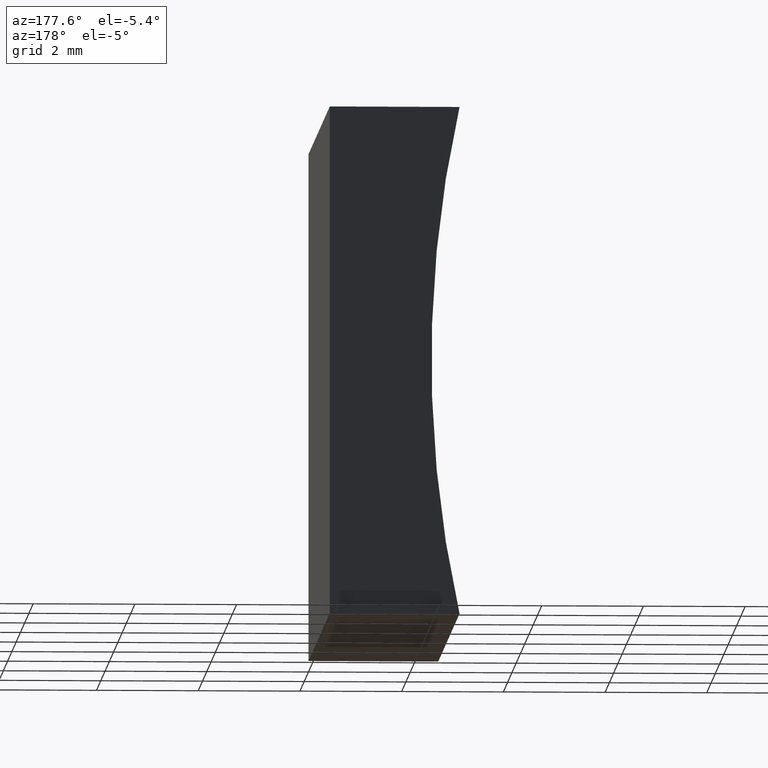
[diagram: clean part render]
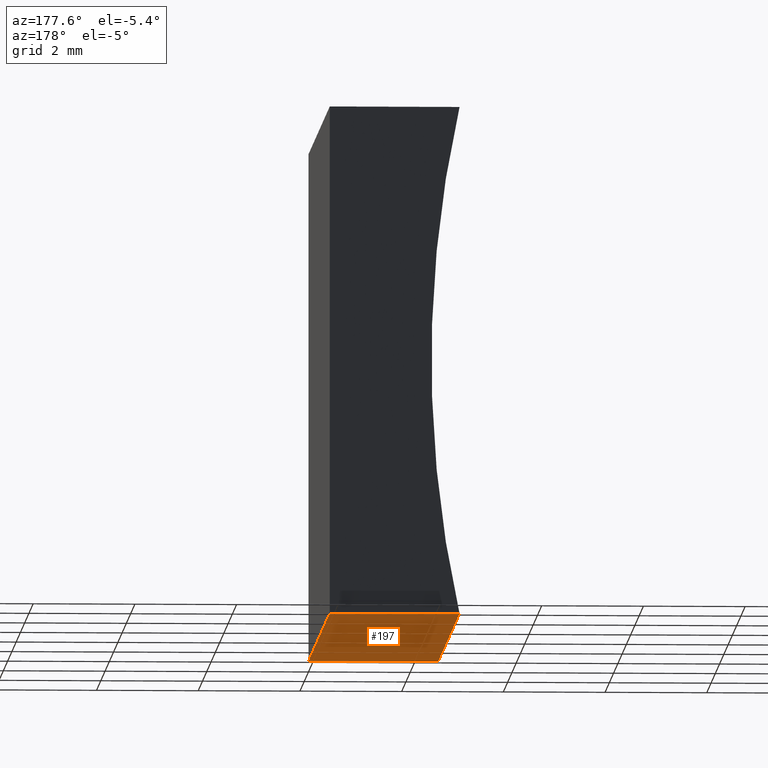
[diagram: same view with one face highlighted and labeled with its STEP entity id]
A machine part, auxiliary view. The second image highlights one B-rep face of the part: STEP entity #197.
In plain terms, the highlighted planar face has unit normal (-0, 0, 1).
Its self-contained STEP definition (entity closure, byte-faithful):
#7 = CARTESIAN_POINT ( 'NONE',  ( 0.0000000000000000000, 0.0000000000000000000, 0.0000000000000000000 ) ) ;
#11 = FACE_OUTER_BOUND ( 'NONE', #83, .T. ) ;
#14 = CARTESIAN_POINT ( 'NONE',  ( 0.0000000000000000000, 10.00000000000000000, 0.0000000000000000000 ) ) ;
#16 = ORIENTED_EDGE ( 'NONE', *, *, #26, .T. ) ;
#17 = EDGE_CURVE ( 'NONE', #70, #179, #79, .T. ) ;
#20 = DIRECTION ( 'NONE',  ( -1.000000000000000000, 0.0000000000000000000, -6.797444814751699500E-016 ) ) ;
#26 = EDGE_CURVE ( 'NONE', #171, #70, #189, .T. ) ;
#38 = CARTESIAN_POINT ( 'NONE',  ( 0.0000000000000000000, 10.00000000000000000, 0.0000000000000000000 ) ) ;
#48 = EDGE_CURVE ( 'NONE', #109, #179, #137, .T. ) ;
#52 = ORIENTED_EDGE ( 'NONE', *, *, #187, .F. ) ;
#58 = VECTOR ( 'NONE', #82, 1000.000000000000000 ) ;
#59 = PLANE ( 'NONE',  #184 ) ;
#67 = ORIENTED_EDGE ( 'NONE', *, *, #17, .T. ) ;
#70 = VERTEX_POINT ( 'NONE', #92 ) ;
#71 = DIRECTION ( 'NONE',  ( 1.000000000000000000, 0.0000000000000000000, 6.797444814751699500E-016 ) ) ;
#79 = LINE ( 'NONE', #7, #104 ) ;
#82 = DIRECTION ( 'NONE',  ( -0.0000000000000000000, -1.000000000000000000, -0.0000000000000000000 ) ) ;
#83 = EDGE_LOOP ( 'NONE', ( #67, #112, #52, #16 ) ) ;
#90 = DIRECTION ( 'NONE',  ( -6.797444814751699500E-016, 0.0000000000000000000, 1.000000000000000000 ) ) ;
#92 = CARTESIAN_POINT ( 'NONE',  ( 0.0000000000000000000, 0.0000000000000000000, 0.0000000000000000000 ) ) ;
#98 = DIRECTION ( 'NONE',  ( -0.0000000000000000000, -1.000000000000000000, -0.0000000000000000000 ) ) ;
#104 = VECTOR ( 'NONE', #20, 1000.000000000000000 ) ;
#109 = VERTEX_POINT ( 'NONE', #130 ) ;
#112 = ORIENTED_EDGE ( 'NONE', *, *, #48, .F. ) ;
#130 = CARTESIAN_POINT ( 'NONE',  ( -2.552022889854347600, 10.00000000000000000, -3.469446951953614200E-015 ) ) ;
#134 = VECTOR ( 'NONE', #158, 1000.000000000000000 ) ;
#137 = LINE ( 'NONE', #148, #180 ) ;
#146 = CARTESIAN_POINT ( 'NONE',  ( 0.0000000000000000000, 10.00000000000000000, 0.0000000000000000000 ) ) ;
#148 = CARTESIAN_POINT ( 'NONE',  ( -2.552022889854347600, 10.00000000000000000, -3.469446951953614200E-015 ) ) ;
#158 = DIRECTION ( 'NONE',  ( -1.000000000000000000, 0.0000000000000000000, -6.797444814751699500E-016 ) ) ;
#171 = VERTEX_POINT ( 'NONE', #38 ) ;
#178 = LINE ( 'NONE', #14, #134 ) ;
#179 = VERTEX_POINT ( 'NONE', #193 ) ;
#180 = VECTOR ( 'NONE', #98, 1000.000000000000000 ) ;
#184 = AXIS2_PLACEMENT_3D ( 'NONE', #198, #90, #71 ) ;
#187 = EDGE_CURVE ( 'NONE', #171, #109, #178, .T. ) ;
#189 = LINE ( 'NONE', #146, #58 ) ;
#193 = CARTESIAN_POINT ( 'NONE',  ( -2.552022889854347600, 0.0000000000000000000, -3.469446951953614200E-015 ) ) ;
#197 = ADVANCED_FACE ( 'NONE', ( #11 ), #59, .F. ) ;
#198 = CARTESIAN_POINT ( 'NONE',  ( 0.0000000000000000000, 10.00000000000000000, 0.0000000000000000000 ) ) ;